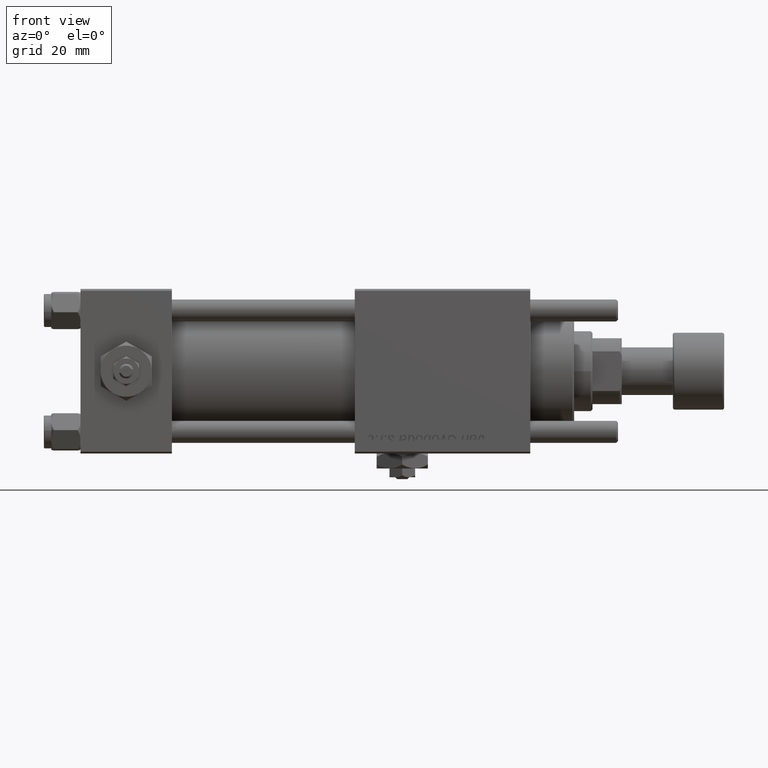
[diagram: clean part render]
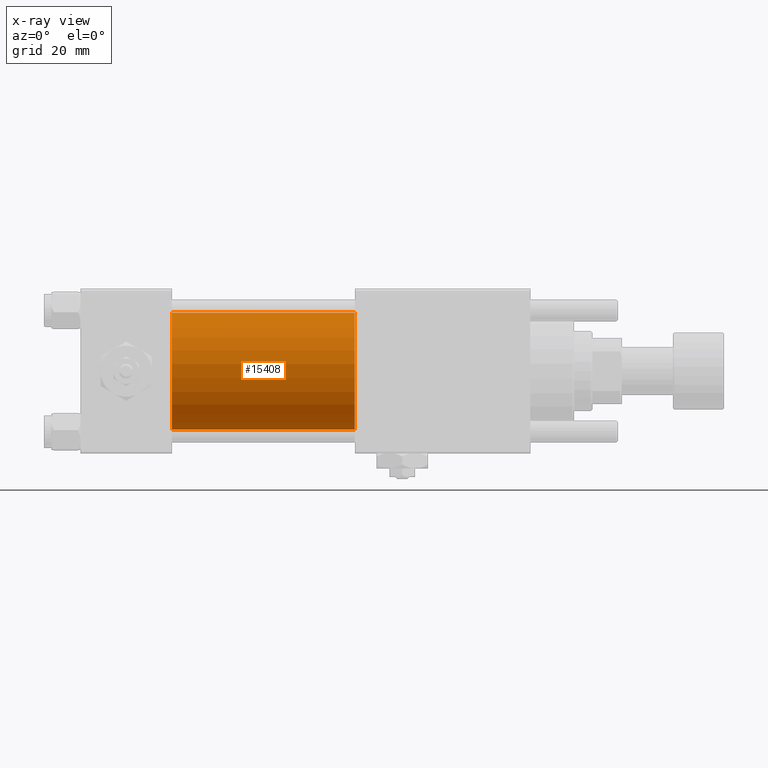
[diagram: x-ray — body ghosted, one internal face saturated and labeled with its STEP entity id]
A machine part, front view, then the same camera in x-ray: the body is ghosted and one INTERNAL B-rep face — a face not visible from any outside direction — is saturated and labeled: STEP entity #15408.
In plain terms, the highlighted cylindrical surface (partial cylindrical patch) has radius 16 mm, axis along (-1, -0, -0).
Its self-contained STEP definition (entity closure, byte-faithful):
#2480 = CIRCLE ( 'NONE', #52207, 16.00000000000000000 ) ;
#3194 = CARTESIAN_POINT ( 'NONE',  ( 75.00000000000001421, -2.602085213965210642E-15, 16.00000000000000000 ) ) ;
#5481 = DIRECTION ( 'NONE',  ( 1.000000000000000000, 0.000000000000000000, 0.000000000000000000 ) ) ;
#6339 = EDGE_CURVE ( 'NONE', #42306, #42010, #56911, .T. ) ;
#6702 = EDGE_CURVE ( 'NONE', #46873, #42074, #45348, .T. ) ;
#6718 = CARTESIAN_POINT ( 'NONE',  ( 75.00000000000001421, -6.426503353294456087E-16, -16.00000000000000000 ) ) ;
#6965 = CARTESIAN_POINT ( 'NONE',  ( 75.00000000000001421, -2.602085213965210642E-15, 16.00000000000000000 ) ) ;
#8809 = VECTOR ( 'NONE', #49852, 1000.000000000000000 ) ;
#12687 = CARTESIAN_POINT ( 'NONE',  ( 75.00000000000001421, -2.602085213965210642E-15, 0.000000000000000000 ) ) ;
#14198 = ORIENTED_EDGE ( 'NONE', *, *, #48396, .T. ) ;
#15393 = EDGE_LOOP ( 'NONE', ( #14198, #56872, #46697, #52553 ) ) ;
#15408 = ADVANCED_FACE ( 'NONE', ( #41083 ), #54833, .F. ) ;
#17678 = EDGE_CURVE ( 'NONE', #42010, #42074, #32171, .T. ) ;
#28762 = CARTESIAN_POINT ( 'NONE',  ( 75.00000000000001421, -2.602085213965210642E-15, 0.000000000000000000 ) ) ;
#31536 = DIRECTION ( 'NONE',  ( 0.000000000000000000, 0.000000000000000000, 1.000000000000000000 ) ) ;
#32171 = CIRCLE ( 'NONE', #53167, 16.00000000000000000 ) ;
#32586 = DIRECTION ( 'NONE',  ( -1.000000000000000000, -0.000000000000000000, -0.000000000000000000 ) ) ;
#40951 = CARTESIAN_POINT ( 'NONE',  ( 25.00000000000000000, -2.602085213965210642E-15, 16.00000000000000000 ) ) ;
#41083 = FACE_OUTER_BOUND ( 'NONE', #15393, .T. ) ;
#42010 = VERTEX_POINT ( 'NONE', #40951 ) ;
#42074 = VERTEX_POINT ( 'NONE', #42130 ) ;
#42130 = CARTESIAN_POINT ( 'NONE',  ( 25.00000000000000000, -6.426503353294456087E-16, -16.00000000000000000 ) ) ;
#42306 = VERTEX_POINT ( 'NONE', #3194 ) ;
#45348 = LINE ( 'NONE', #45649, #8809 ) ;
#45649 = CARTESIAN_POINT ( 'NONE',  ( 75.00000000000001421, -6.426503353294456087E-16, -16.00000000000000000 ) ) ;
#46697 = ORIENTED_EDGE ( 'NONE', *, *, #17678, .F. ) ;
#46873 = VERTEX_POINT ( 'NONE', #6718 ) ;
#46976 = DIRECTION ( 'NONE',  ( 0.000000000000000000, 0.000000000000000000, -1.000000000000000000 ) ) ;
#48396 = EDGE_CURVE ( 'NONE', #42306, #46873, #2480, .T. ) ;
#48461 = AXIS2_PLACEMENT_3D ( 'NONE', #12687, #50358, #31536 ) ;
#49852 = DIRECTION ( 'NONE',  ( -1.000000000000000000, -0.000000000000000000, -0.000000000000000000 ) ) ;
#50358 = DIRECTION ( 'NONE',  ( -1.000000000000000000, -0.000000000000000000, -0.000000000000000000 ) ) ;
#50945 = CARTESIAN_POINT ( 'NONE',  ( 25.00000000000000000, -2.602085213965210642E-15, 0.000000000000000000 ) ) ;
#52207 = AXIS2_PLACEMENT_3D ( 'NONE', #28762, #52359, #46976 ) ;
#52359 = DIRECTION ( 'NONE',  ( 1.000000000000000000, 0.000000000000000000, 0.000000000000000000 ) ) ;
#52553 = ORIENTED_EDGE ( 'NONE', *, *, #6339, .F. ) ;
#53167 = AXIS2_PLACEMENT_3D ( 'NONE', #50945, #5481, #54541 ) ;
#54155 = VECTOR ( 'NONE', #32586, 1000.000000000000000 ) ;
#54541 = DIRECTION ( 'NONE',  ( 0.000000000000000000, 0.000000000000000000, -1.000000000000000000 ) ) ;
#54833 = CYLINDRICAL_SURFACE ( 'NONE', #48461, 16.00000000000000000 ) ;
#56872 = ORIENTED_EDGE ( 'NONE', *, *, #6702, .T. ) ;
#56911 = LINE ( 'NONE', #6965, #54155 ) ;